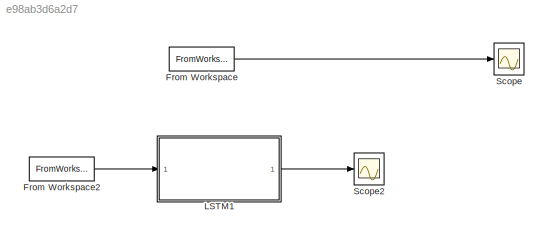
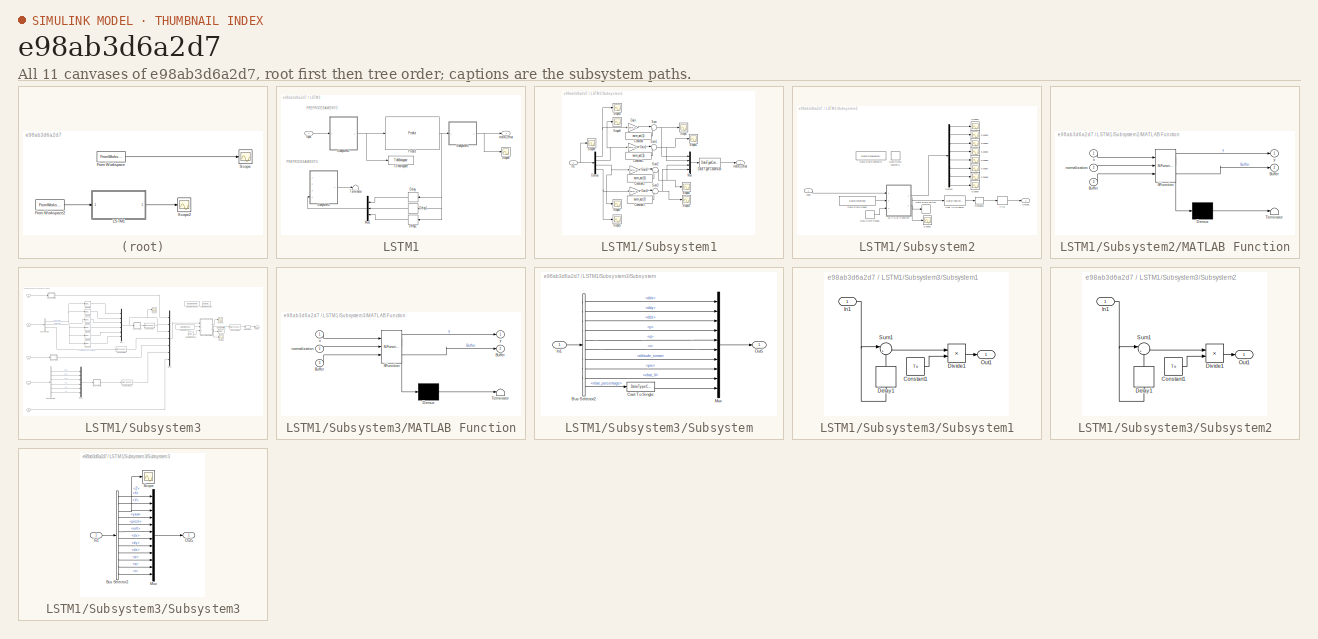
[diagram: thumbnail index - all 11 canvases of the model, root first then tree order]
MODEL slx_e98ab3d6a2d7
KIND model
CONFIG AbsTol = auto
CONFIG EnableMultiTasking = off
CONFIG FixedStep = auto
CONFIG MaxStep = auto
CONFIG MinStep = auto
CONFIG RelTol = 1e-3
CONFIG SampleTimeConstraint = Unconstrained
CONFIG SolverName = VariableStepAuto
CONFIG StartTime = 0.0
CONFIG StopTime = 10
BLOCK [FromWorkspace] From Workspace
  SampleTime = 5e-3
  VariableName = Test
BLOCK [FromWorkspace] From Workspace2
  SampleTime = 5e-3
  VariableName = Test
BLOCK [SubSystem] LSTM1
  Ports = [1, 1]
  RequestExecContextInheritance = off
  VariantControl = LSTM
BLOCK [Delay] LSTM1/Delay
  Commented = on
  DelayLength = 1
  InputPortMap = u0
  Ports = [1, 1]
BLOCK [Delay] LSTM1/Delay1
  Commented = on
  InputPortMap = u0
  Ports = [1, 1]
BLOCK [Delay] LSTM1/Delay2
  Commented = on
  DelayLength = 3
  InputPortMap = u0
  Ports = [1, 1]
BLOCK [Inport] LSTM1/Input
BLOCK [Mux] LSTM1/Mux1
  Commented = on
  DisplayOption = bar
  Inputs = 3
  Ports = [3, 1]
BLOCK [Reference] LSTM1/Predict  REF=deeplib/Predict
  Ports = [1, 1]
  SourceBlock = deeplib/Predict
  SourceProductBaseCode = NN
  SourceType = Predict
BLOCK [Scope] LSTM1/Scope8
  Floating = off
  NumInputPorts = 1
  Ports = [1]
  ScopeSpecificationString = Simulink.scopes.TimeScopeBlockCfg('CurrentConfiguration', extmgr.ConfigurationSet(extmgr.Configuration('Core','General UI',true),extmgr.Configuration('Core','Source UI',true),extmgr.Configuration('Sources','WiredSimulink',true,'DataLoggingVariableName','ScopeData1'),extmgr.Configuration('Visuals','Time Domain',true,'SerializedDisplays',{struct('MinYLimReal','-507.807','MaxYLimReal','485.07436','YL...<+1582ch>
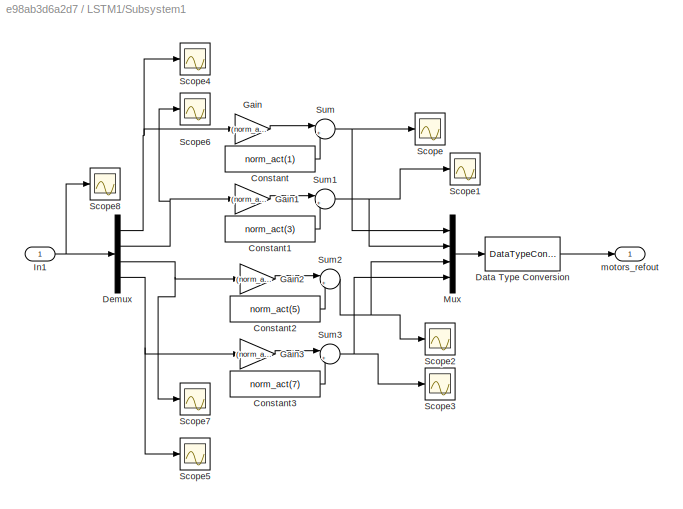
BLOCK [SubSystem] LSTM1/Subsystem1
  NameLocation = right
  Ports = [1, 1]
  RequestExecContextInheritance = off
BLOCK [Constant] LSTM1/Subsystem1/Constant
  Value = norm_act(1)
BLOCK [Constant] LSTM1/Subsystem1/Constant1
  Value = norm_act(3)
BLOCK [Constant] LSTM1/Subsystem1/Constant2
  Value = norm_act(5)
BLOCK [Constant] LSTM1/Subsystem1/Constant3
  Value = norm_act(7)
BLOCK [DataTypeConversion] LSTM1/Subsystem1/Data Type Conversion
  OutDataTypeStr = single
  RndMeth = Floor
  SaturateOnIntegerOverflow = off
BLOCK [Demux] LSTM1/Subsystem1/Demux
  Ports = [1, 4]
BLOCK [Gain] LSTM1/Subsystem1/Gain
  Gain = (norm_act(2)-norm_act(1))
BLOCK [Gain] LSTM1/Subsystem1/Gain1
  Gain = (norm_act(4)-norm_act(3))
BLOCK [Gain] LSTM1/Subsystem1/Gain2
  Gain = (norm_act(6)-norm_act(5))
BLOCK [Gain] LSTM1/Subsystem1/Gain3
  Gain = (norm_act(8)-norm_act(7))
BLOCK [Inport] LSTM1/Subsystem1/In1
BLOCK [Mux] LSTM1/Subsystem1/Mux
  DisplayOption = bar
  Ports = [4, 1]
BLOCK [Scope] LSTM1/Subsystem1/Scope
  Floating = off
  NumInputPorts = 1
  Ports = [1]
  ScopeSpecificationString = Simulink.scopes.TimeScopeBlockCfg('CurrentConfiguration', extmgr.ConfigurationSet(extmgr.Configuration('Core','General UI',true),extmgr.Configuration('Core','Source UI',true),extmgr.Configuration('Sources','WiredSimulink',true,'DataLoggingVariableName','ScopeData11'),extmgr.Configuration('Visuals','Time Domain',true,'SerializedDisplays',{struct('MinYLimReal','-14.63783','MaxYLimReal','513.83146','...<+1474ch>
BLOCK [Scope] LSTM1/Subsystem1/Scope1
  Floating = off
  NumInputPorts = 1
  Ports = [1]
  ScopeSpecificationString = Simulink.scopes.TimeScopeBlockCfg('CurrentConfiguration', extmgr.ConfigurationSet(extmgr.Configuration('Core','General UI',true),extmgr.Configuration('Core','Source UI',true),extmgr.Configuration('Sources','WiredSimulink',true,'DataLoggingVariableName','ScopeData12'),extmgr.Configuration('Visuals','Time Domain',true,'SerializedDisplays',{struct('MinYLimReal','-517.71413','MaxYLimReal','46.41268','...<+1404ch>
BLOCK [Scope] LSTM1/Subsystem1/Scope2
  Floating = off
  NumInputPorts = 1
  Ports = [1]
  ScopeSpecificationString = Simulink.scopes.TimeScopeBlockCfg('CurrentConfiguration', extmgr.ConfigurationSet(extmgr.Configuration('Core','General UI',true),extmgr.Configuration('Core','Source UI',true),extmgr.Configuration('Sources','WiredSimulink',true,'DataLoggingVariableName','ScopeData13'),extmgr.Configuration('Visuals','Time Domain',true,'SerializedDisplays',{struct('MinYLimReal','-36.8167','MaxYLimReal','431.3504','YL...<+1440ch>
BLOCK [Scope] LSTM1/Subsystem1/Scope3
  Floating = off
  NumInputPorts = 1
  Ports = [1]
  ScopeSpecificationString = Simulink.scopes.TimeScopeBlockCfg('CurrentConfiguration', extmgr.ConfigurationSet(extmgr.Configuration('Core','General UI',true),extmgr.Configuration('Core','Source UI',true),extmgr.Configuration('Sources','WiredSimulink',true,'DataLoggingVariableName','ScopeData14'),extmgr.Configuration('Visuals','Time Domain',true,'SerializedDisplays',{struct('MinYLimReal','-236.15714','MaxYLimReal','-229.71905'...<+1427ch>
BLOCK [Scope] LSTM1/Subsystem1/Scope4
  Floating = off
  NumInputPorts = 1
  Ports = [1]
  ScopeSpecificationString = Simulink.scopes.TimeScopeBlockCfg('CurrentConfiguration', extmgr.ConfigurationSet(extmgr.Configuration('Core','General UI',true),extmgr.Configuration('Core','Source UI',true),extmgr.Configuration('Sources','WiredSimulink',true,'DataLoggingVariableName','ScopeData15'),extmgr.Configuration('Visuals','Time Domain',true,'SerializedDisplays',{struct('MinYLimReal','-0.125','MaxYLimReal','1.125','YLabelR...<+1425ch>
BLOCK [Scope] LSTM1/Subsystem1/Scope5
  Floating = off
  NumInputPorts = 1
  Ports = [1]
  ScopeSpecificationString = Simulink.scopes.TimeScopeBlockCfg('CurrentConfiguration', extmgr.ConfigurationSet(extmgr.Configuration('Core','General UI',true),extmgr.Configuration('Core','Source UI',true),extmgr.Configuration('Sources','WiredSimulink',true,'DataLoggingVariableName','ScopeData16'),extmgr.Configuration('Visuals','Time Domain',true,'SerializedDisplays',{struct('MinYLimReal','0.25149','MaxYLimReal','1.08317','YLab...<+1365ch>
BLOCK [Scope] LSTM1/Subsystem1/Scope6
  Floating = off
  NumInputPorts = 1
  Ports = [1]
  ScopeSpecificationString = Simulink.scopes.TimeScopeBlockCfg('CurrentConfiguration', extmgr.ConfigurationSet(extmgr.Configuration('Core','General UI',true),extmgr.Configuration('Core','Source UI',true),extmgr.Configuration('Sources','WiredSimulink',true,'DataLoggingVariableName','ScopeData17'),extmgr.Configuration('Visuals','Time Domain',true,'SerializedDisplays',{struct('MinYLimReal','-0.11551','MaxYLimReal','1.12395','YLa...<+1414ch>
BLOCK [Scope] LSTM1/Subsystem1/Scope7
  Floating = off
  NumInputPorts = 1
  Ports = [1]
  ScopeSpecificationString = Simulink.scopes.TimeScopeBlockCfg('CurrentConfiguration', extmgr.ConfigurationSet(extmgr.Configuration('Core','General UI',true),extmgr.Configuration('Core','Source UI',true),extmgr.Configuration('Sources','WiredSimulink',true,'DataLoggingVariableName','ScopeData18'),extmgr.Configuration('Visuals','Time Domain',true,'SerializedDisplays',{struct('MinYLimReal','-0.10927','MaxYLimReal','0.98413','YLa...<+1393ch>
BLOCK [Scope] LSTM1/Subsystem1/Scope8
  Floating = off
  NumInputPorts = 1
  Ports = [1]
  ScopeSpecificationString = Simulink.scopes.TimeScopeBlockCfg('CurrentConfiguration', extmgr.ConfigurationSet(extmgr.Configuration('Core','General UI',true),extmgr.Configuration('Core','Source UI',true),extmgr.Configuration('Sources','WiredSimulink',true,'DataLoggingVariableName','ScopeData1'),extmgr.Configuration('Visuals','Time Domain',true,'SerializedDisplays',{struct('MinYLimReal','-0.12492','MaxYLimReal','1.12498','YLab...<+1460ch>
BLOCK [Sum] LSTM1/Subsystem1/Sum
  Inputs = |++
  Ports = [2, 1]
BLOCK [Sum] LSTM1/Subsystem1/Sum1
  Inputs = |++
  Ports = [2, 1]
BLOCK [Sum] LSTM1/Subsystem1/Sum2
  Inputs = |++
  Ports = [2, 1]
BLOCK [Sum] LSTM1/Subsystem1/Sum3
  Inputs = |++
  Ports = [2, 1]
BLOCK [Outport] LSTM1/Subsystem1/motors_refout
BLOCK [SubSystem] LSTM1/Subsystem2
  Ports = [1, 1]
  RequestExecContextInheritance = off
BLOCK [DataTypeConversion] LSTM1/Subsystem2/Cast To Single3
  OutDataTypeStr = single
  RndMeth = Floor
  SaturateOnIntegerOverflow = off
BLOCK [DataStoreMemory] LSTM1/Subsystem2/Data Store Memory1
  DataStoreName = Buffer
  InitialValue = repmat(x0,1,delays+1)
  ReadBeforeWriteMsg = warning
  ShowAdditionalParam = off
  WriteAfterReadMsg = warning
  WriteAfterWriteMsg = warning
BLOCK [DataStoreMemory] LSTM1/Subsystem2/Data Store Memory2
  DataStoreName = normalization_sts
  InitialValue = normalization_sts
  ReadBeforeWriteMsg = warning
  ShowAdditionalParam = off
  WriteAfterReadMsg = warning
  WriteAfterWriteMsg = warning
BLOCK [DataStoreRead] LSTM1/Subsystem2/Data Store Read1
  DataStoreName = normalization_sts
  IndexOptions = Index vector (dialog)
  Indices = 1
  OutputSizes = 1
  Ports = [0, 1]
BLOCK [DataStoreRead] LSTM1/Subsystem2/Data Store Read2
  DataStoreName = Buffer
  IndexOptions = Index vector (dialog)
  Indices = 1
  OutputSizes = 1
  Ports = [0, 1]
BLOCK [DataStoreWrite] LSTM1/Subsystem2/Data Store Write1
  DataStoreName = Buffer
  IndexOptions = Index vector (dialog)
  Indices = 1
  OutputSizes = 1
  Ports = [1]
BLOCK [Demux] LSTM1/Subsystem2/Demux
  Outputs = 8
  Ports = [1, 8]
BLOCK [DSPFlip] LSTM1/Subsystem2/Flip
  dim = Rows
BLOCK [Inport] LSTM1/Subsystem2/Input
BLOCK [SubSystem] LSTM1/Subsystem2/MATLAB Function
  ErrorFcn = Stateflow.Translate.translate
  PermitHierarchicalResolution = ExplicitOnly
  Ports = [3, 2]
  RequestExecContextInheritance = off
  SFBlockType = MATLAB Function
  TreatAsAtomicUnit = on
BLOCK [Demux] LSTM1/Subsystem2/MATLAB Function/ Demux 
  Outputs = 1
  Ports = [1, 1]
BLOCK [S-Function] LSTM1/Subsystem2/MATLAB Function/ SFunction 
  EnableBusSupport = on
  FunctionName = sf_sfun
  PortCounts = [3 3]
  Ports = [3, 3]
  SFcnIsStateOwnerBlock = off
  SFunctionDeploymentMode = off
  Tag = Stateflow S-Function 4
BLOCK [Terminator] LSTM1/Subsystem2/MATLAB Function/ Terminator 
BLOCK [Outport] LSTM1/Subsystem2/MATLAB Function/Buffer
  Port = 2
BLOCK [Inport] LSTM1/Subsystem2/MATLAB Function/Buffer 
  Port = 3
BLOCK [Inport] LSTM1/Subsystem2/MATLAB Function/normalization
  Port = 2
BLOCK [Inport] LSTM1/Subsystem2/MATLAB Function/u
BLOCK [Outport] LSTM1/Subsystem2/MATLAB Function/y
BLOCK [Outport] LSTM1/Subsystem2/Output
BLOCK [Reshape] LSTM1/Subsystem2/Reshape1
  OutputDimensionality = Customize
  OutputDimensions = [length(x0),delays+1]
  Ports = [1, 1]
BLOCK [Scope] LSTM1/Subsystem2/Scope1
  Floating = off
  NumInputPorts = 1
  Ports = [1]
  ScopeSpecificationString = Simulink.scopes.TimeScopeBlockCfg('CurrentConfiguration', extmgr.ConfigurationSet(extmgr.Configuration('Core','General UI',true),extmgr.Configuration('Core','Source UI',true),extmgr.Configuration('Sources','WiredSimulink',true,'DataLoggingVariableName','ScopeData2'),extmgr.Configuration('Visuals','Time Domain',true,'SerializedDisplays',{struct('MinYLimReal','0.34551','MaxYLimReal','0.88614','YLabe...<+5008ch>
BLOCK [Scope] LSTM1/Subsystem2/Scope2
  Floating = off
  NumInputPorts = 1
  Ports = [1]
  ScopeSpecificationString = Simulink.scopes.TimeScopeBlockCfg('CurrentConfiguration', extmgr.ConfigurationSet(extmgr.Configuration('Core','General UI',true),extmgr.Configuration('Core','Source UI',true),extmgr.Configuration('Sources','WiredSimulink',true,'DataLoggingVariableName','ScopeData1'),extmgr.Configuration('Visuals','Time Domain',true,'SerializedDisplays',{struct('MinYLimReal','-0.12366','MaxYLimReal','1.11296','YLab...<+1431ch>
BLOCK [Scope] LSTM1/Subsystem2/Scope3
  Floating = off
  NumInputPorts = 1
  Ports = [1]
  ScopeSpecificationString = Simulink.scopes.TimeScopeBlockCfg('CurrentConfiguration', extmgr.ConfigurationSet(extmgr.Configuration('Core','General UI',true),extmgr.Configuration('Core','Source UI',true),extmgr.Configuration('Sources','WiredSimulink',true,'DataLoggingVariableName','ScopeData3'),extmgr.Configuration('Visuals','Time Domain',true,'SerializedDisplays',{struct('MinYLimReal','0.41609','MaxYLimReal','0.59722','YLabe...<+1429ch>
BLOCK [Scope] LSTM1/Subsystem2/Scope4
  Floating = off
  NumInputPorts = 1
  Ports = [1]
  ScopeSpecificationString = Simulink.scopes.TimeScopeBlockCfg('CurrentConfiguration', extmgr.ConfigurationSet(extmgr.Configuration('Core','General UI',true),extmgr.Configuration('Core','Source UI',true),extmgr.Configuration('Sources','WiredSimulink',true,'DataLoggingVariableName','ScopeData4'),extmgr.Configuration('Visuals','Time Domain',true,'SerializedDisplays',{struct('MinYLimReal','-0.12683','MaxYLimReal','1.14147','YLab...<+1996ch>
BLOCK [Scope] LSTM1/Subsystem2/Scope5
  Floating = off
  NumInputPorts = 1
  Ports = [1]
  ScopeSpecificationString = Simulink.scopes.TimeScopeBlockCfg('CurrentConfiguration', extmgr.ConfigurationSet(extmgr.Configuration('Core','General UI',true),extmgr.Configuration('Core','Source UI',true),extmgr.Configuration('Sources','WiredSimulink',true,'DataLoggingVariableName','ScopeData5'),extmgr.Configuration('Visuals','Time Domain',true,'SerializedDisplays',{struct('MinYLimReal','-0.12683','MaxYLimReal','1.14147','YLab...<+1996ch>
BLOCK [Scope] LSTM1/Subsystem2/Scope6
  Floating = off
  NumInputPorts = 1
  Ports = [1]
  ScopeSpecificationString = Simulink.scopes.TimeScopeBlockCfg('CurrentConfiguration', extmgr.ConfigurationSet(extmgr.Configuration('Core','General UI',true),extmgr.Configuration('Core','Source UI',true),extmgr.Configuration('Sources','WiredSimulink',true,'DataLoggingVariableName','ScopeData6'),extmgr.Configuration('Visuals','Time Domain',true,'SerializedDisplays',{struct('MinYLimReal','-0.12683','MaxYLimReal','1.14147','YLab...<+1996ch>
BLOCK [Scope] LSTM1/Subsystem2/Scope7
  Floating = off
  NumInputPorts = 1
  Ports = [1]
  ScopeSpecificationString = Simulink.scopes.TimeScopeBlockCfg('CurrentConfiguration', extmgr.ConfigurationSet(extmgr.Configuration('Core','General UI',true),extmgr.Configuration('Core','Source UI',true),extmgr.Configuration('Sources','WiredSimulink',true,'DataLoggingVariableName','ScopeData7'),extmgr.Configuration('Visuals','Time Domain',true,'SerializedDisplays',{struct('MinYLimReal','0.03988','MaxYLimReal','1.10007','YLabe...<+1429ch>
BLOCK [Scope] LSTM1/Subsystem2/Scope8
  Floating = off
  NumInputPorts = 1
  Ports = [1]
  ScopeSpecificationString = Simulink.scopes.TimeScopeBlockCfg('CurrentConfiguration', extmgr.ConfigurationSet(extmgr.Configuration('Core','General UI',true),extmgr.Configuration('Core','Source UI',true),extmgr.Configuration('Sources','WiredSimulink',true,'DataLoggingVariableName','ScopeData8'),extmgr.Configuration('Visuals','Time Domain',true,'SerializedDisplays',{struct('MinYLimReal','-0.125','MaxYLimReal','1.125','YLabelRe...<+1438ch>
BLOCK [Scope] LSTM1/Subsystem2/Scope9
  Floating = off
  NumInputPorts = 1
  Ports = [1]
  ScopeSpecificationString = Simulink.scopes.TimeScopeBlockCfg('CurrentConfiguration', extmgr.ConfigurationSet(extmgr.Configuration('Core','General UI',true),extmgr.Configuration('Core','Source UI',true),extmgr.Configuration('Sources','WiredSimulink',true,'DataLoggingVariableName','ScopeData9'),extmgr.Configuration('Visuals','Time Domain',true,'SerializedDisplays',{struct('MinYLimReal','-0.125','MaxYLimReal','1.125','YLabelRe...<+1417ch>
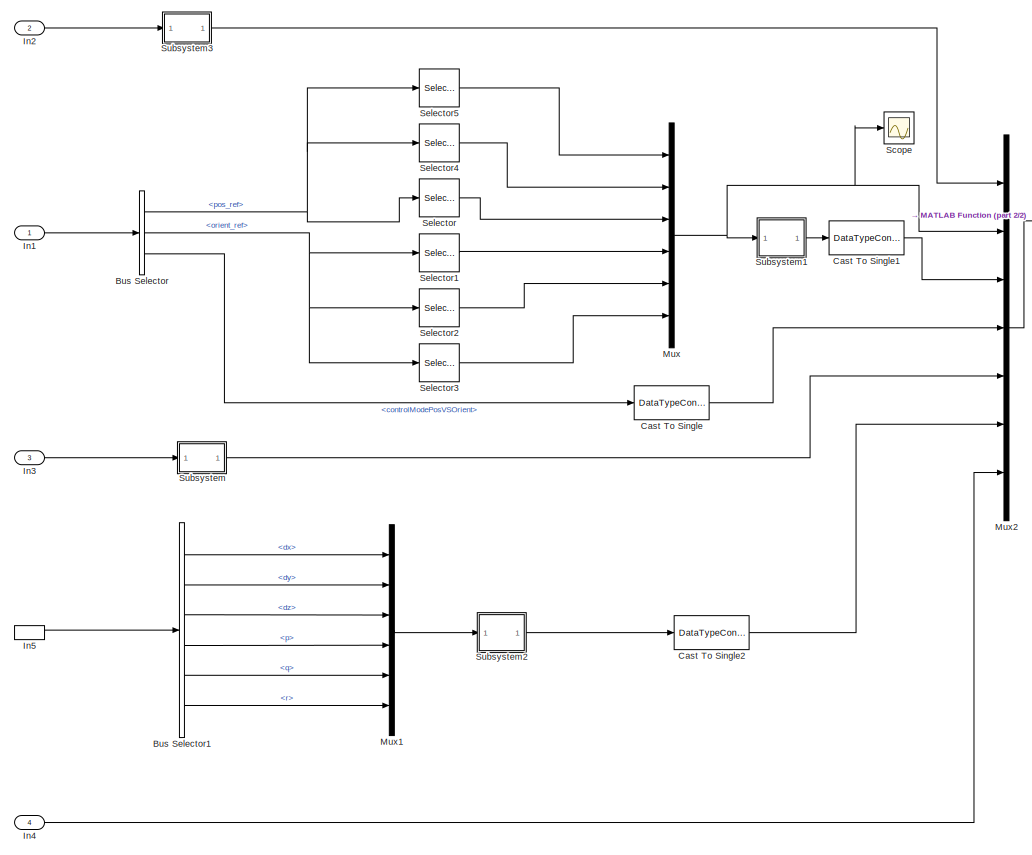
[diagram: LSTM1/Subsystem3 - part 1/2, left side, full height]
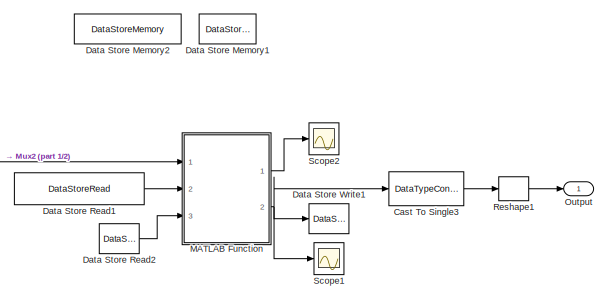
[diagram: LSTM1/Subsystem3 - part 2/2, top right region]
BLOCK [SubSystem] LSTM1/Subsystem3
  Commented = on
  Ports = [4, 1]
  RequestExecContextInheritance = off
BLOCK [BusSelector] LSTM1/Subsystem3/Bus Selector
  OutputSignals = pos_ref,orient_ref,controlModePosVSOrient
  Ports = [1, 3]
BLOCK [BusSelector] LSTM1/Subsystem3/Bus Selector1
  OutputSignals = dx,dy,dz,p,q,r
  Ports = [1, 6]
BLOCK [DataTypeConversion] LSTM1/Subsystem3/Cast To Single
  OutDataTypeStr = single
  RndMeth = Floor
  SaturateOnIntegerOverflow = off
BLOCK [DataTypeConversion] LSTM1/Subsystem3/Cast To Single1
  OutDataTypeStr = single
  RndMeth = Floor
  SaturateOnIntegerOverflow = off
BLOCK [DataTypeConversion] LSTM1/Subsystem3/Cast To Single2
  OutDataTypeStr = single
  RndMeth = Floor
  SaturateOnIntegerOverflow = off
BLOCK [DataTypeConversion] LSTM1/Subsystem3/Cast To Single3
  OutDataTypeStr = single
  RndMeth = Floor
  SaturateOnIntegerOverflow = off
BLOCK [DataStoreMemory] LSTM1/Subsystem3/Data Store Memory1
  DataStoreName = Buffer_f
  InitialValue = repmat(x0_f,1,delays+1)
  ReadBeforeWriteMsg = warning
  ShowAdditionalParam = off
  WriteAfterReadMsg = warning
  WriteAfterWriteMsg = warning
BLOCK [DataStoreMemory] LSTM1/Subsystem3/Data Store Memory2
  DataStoreName = normalization_sts
  InitialValue = normalization_sts
  ReadBeforeWriteMsg = warning
  ShowAdditionalParam = off
  WriteAfterReadMsg = warning
  WriteAfterWriteMsg = warning
BLOCK [DataStoreRead] LSTM1/Subsystem3/Data Store Read1
  DataStoreName = normalization_sts
  IndexOptions = Index vector (dialog)
  Indices = 1
  OutputSizes = 1
  Ports = [0, 1]
BLOCK [DataStoreRead] LSTM1/Subsystem3/Data Store Read2
  DataStoreName = Buffer_f
  IndexOptions = Index vector (dialog)
  Indices = 1
  OutputSizes = 1
  Ports = [0, 1]
BLOCK [DataStoreWrite] LSTM1/Subsystem3/Data Store Write1
  DataStoreName = Buffer_f
  IndexOptions = Index vector (dialog)
  Indices = 1
  OutputSizes = 1
  Ports = [1]
BLOCK [Inport] LSTM1/Subsystem3/In1
BLOCK [Inport] LSTM1/Subsystem3/In2
  Port = 2
BLOCK [Inport] LSTM1/Subsystem3/In3
  Port = 3
BLOCK [Inport] LSTM1/Subsystem3/In4
  Port = 4
BLOCK [InportShadow] LSTM1/Subsystem3/In5
  Port = 2
BLOCK [SubSystem] LSTM1/Subsystem3/MATLAB Function
  ErrorFcn = Stateflow.Translate.translate
  PermitHierarchicalResolution = ExplicitOnly
  Ports = [3, 2]
  RequestExecContextInheritance = off
  SFBlockType = MATLAB Function
  TreatAsAtomicUnit = on
BLOCK [Demux] LSTM1/Subsystem3/MATLAB Function/ Demux 
  Outputs = 1
  Ports = [1, 1]
BLOCK [S-Function] LSTM1/Subsystem3/MATLAB Function/ SFunction 
  EnableBusSupport = on
  FunctionName = sf_sfun
  PortCounts = [3 3]
  Ports = [3, 3]
  SFcnIsStateOwnerBlock = off
  SFunctionDeploymentMode = off
  Tag = Stateflow S-Function 5
BLOCK [Terminator] LSTM1/Subsystem3/MATLAB Function/ Terminator 
BLOCK [Outport] LSTM1/Subsystem3/MATLAB Function/Buffer
  Port = 2
BLOCK [Inport] LSTM1/Subsystem3/MATLAB Function/Buffer 
  Port = 3
BLOCK [Inport] LSTM1/Subsystem3/MATLAB Function/normalization
  Port = 2
BLOCK [Inport] LSTM1/Subsystem3/MATLAB Function/u
BLOCK [Outport] LSTM1/Subsystem3/MATLAB Function/y
BLOCK [Mux] LSTM1/Subsystem3/Mux
  DisplayOption = bar
  Inputs = 6
  Ports = [6, 1]
BLOCK [Mux] LSTM1/Subsystem3/Mux1
  DisplayOption = bar
  Inputs = 6
  Ports = [6, 1]
BLOCK [Mux] LSTM1/Subsystem3/Mux2
  DisplayOption = signals
  Inputs = 7
  Ports = [7, 1]
BLOCK [Outport] LSTM1/Subsystem3/Output
BLOCK [Reshape] LSTM1/Subsystem3/Reshape1
  OutputDimensionality = Customize
  OutputDimensions = [length(x0_f),delays+1]
  Ports = [1, 1]
BLOCK [Scope] LSTM1/Subsystem3/Scope
  Floating = off
  NumInputPorts = 1
  Ports = [1]
  ScopeSpecificationString = Simulink.scopes.TimeScopeBlockCfg('CurrentConfiguration', extmgr.ConfigurationSet(extmgr.Configuration('Core','General UI',true),extmgr.Configuration('Core','Source UI',true),extmgr.Configuration('Sources','WiredSimulink',true,'DataLoggingVariableName','ScopeData1'),extmgr.Configuration('Visuals','Time Domain',true,'SerializedDisplays',{struct('MinYLimReal','-53.25781','MaxYLimReal','100.66612','Y...<+1505ch>
BLOCK [Scope] LSTM1/Subsystem3/Scope1
  Floating = off
  NumInputPorts = 1
  Ports = [1]
  ScopeSpecificationString = Simulink.scopes.TimeScopeBlockCfg('CurrentConfiguration', extmgr.ConfigurationSet(extmgr.Configuration('Core','General UI',true),extmgr.Configuration('Core','Source UI',true),extmgr.Configuration('Sources','WiredSimulink',true,'DataLoggingVariableName','ScopeData2'),extmgr.Configuration('Visuals','Time Domain',true,'SerializedDisplays',{struct('MinYLimReal','0.34551','MaxYLimReal','0.88614','YLabe...<+5008ch>
BLOCK [Scope] LSTM1/Subsystem3/Scope2
  Floating = off
  NumInputPorts = 1
  Ports = [1]
  ScopeSpecificationString = Simulink.scopes.TimeScopeBlockCfg('CurrentConfiguration', extmgr.ConfigurationSet(extmgr.Configuration('Core','General UI',true),extmgr.Configuration('Core','Source UI',true),extmgr.Configuration('Sources','WiredSimulink',true,'DataLoggingVariableName','ScopeData1'),extmgr.Configuration('Visuals','Time Domain',true,'SerializedDisplays',{struct('MinYLimReal','-0.12683','MaxYLimReal','1.14147','YLab...<+1996ch>
BLOCK [Selector] LSTM1/Subsystem3/Selector
  IndexOptions = Index vector (dialog)
  Indices = [3]
  InputPortWidth = 3
  OutputSizes = 1
  Ports = [1, 1]
BLOCK [Selector] LSTM1/Subsystem3/Selector1
  IndexOptions = Index vector (dialog)
  Indices = [1]
  InputPortWidth = 3
  OutputSizes = 1
  Ports = [1, 1]
BLOCK [Selector] LSTM1/Subsystem3/Selector2
  IndexOptions = Index vector (dialog)
  Indices = [3]
  InputPortWidth = 3
  OutputSizes = 1
  Ports = [1, 1]
BLOCK [Selector] LSTM1/Subsystem3/Selector3
  IndexOptions = Index vector (dialog)
  Indices = [2]
  InputPortWidth = 3
  OutputSizes = 1
  Ports = [1, 1]
BLOCK [Selector] LSTM1/Subsystem3/Selector4
  IndexOptions = Index vector (dialog)
  Indices = [2]
  InputPortWidth = 3
  OutputSizes = 1
  Ports = [1, 1]
BLOCK [Selector] LSTM1/Subsystem3/Selector5
  IndexOptions = Index vector (dialog)
  Indices = [1]
  InputPortWidth = 3
  OutputSizes = 1
  Ports = [1, 1]
BLOCK [SubSystem] LSTM1/Subsystem3/Subsystem
  Ports = [1, 1]
  RequestExecContextInheritance = off
BLOCK [BusSelector] LSTM1/Subsystem3/Subsystem/Bus Selector2
  OutputSignals = ddx,ddy,ddz,p,q,r,altitude_sonar,prs,vbat_V,vbat_percentage
  Ports = [1, 10]
BLOCK [DataTypeConversion] LSTM1/Subsystem3/Subsystem/Cast To Single
  OutDataTypeStr = single
  RndMeth = Floor
  SaturateOnIntegerOverflow = off
BLOCK [Inport] LSTM1/Subsystem3/Subsystem/In1
BLOCK [Mux] LSTM1/Subsystem3/Subsystem/Mux
  DisplayOption = bar
  Inputs = 10
  Ports = [10, 1]
BLOCK [Outport] LSTM1/Subsystem3/Subsystem/Out5
BLOCK [SubSystem] LSTM1/Subsystem3/Subsystem1
  Ports = [1, 1]
  RequestExecContextInheritance = off
BLOCK [Constant] LSTM1/Subsystem3/Subsystem1/Constant1
  Value = Ts
BLOCK [Delay] LSTM1/Subsystem3/Subsystem1/Delay1
  DelayLength = 1
  InitialCondition = 0
  InputPortMap = u0
  NameLocation = right
  Ports = [1, 1]
BLOCK [Product] LSTM1/Subsystem3/Subsystem1/Divide1
  Inputs = */
  Ports = [2, 1]
BLOCK [Inport] LSTM1/Subsystem3/Subsystem1/In1
BLOCK [Outport] LSTM1/Subsystem3/Subsystem1/Out1
BLOCK [Sum] LSTM1/Subsystem3/Subsystem1/Sum1
  Inputs = |+-
  Ports = [2, 1]
BLOCK [SubSystem] LSTM1/Subsystem3/Subsystem2
  Ports = [1, 1]
  RequestExecContextInheritance = off
BLOCK [Constant] LSTM1/Subsystem3/Subsystem2/Constant1
  Value = Ts
BLOCK [Delay] LSTM1/Subsystem3/Subsystem2/Delay1
  DelayLength = 1
  InitialCondition = 0
  InputPortMap = u0
  NameLocation = right
  Ports = [1, 1]
BLOCK [Product] LSTM1/Subsystem3/Subsystem2/Divide1
  Inputs = */
  Ports = [2, 1]
BLOCK [Inport] LSTM1/Subsystem3/Subsystem2/In1
BLOCK [Outport] LSTM1/Subsystem3/Subsystem2/Out1
BLOCK [Sum] LSTM1/Subsystem3/Subsystem2/Sum1
  Inputs = |+-
  Ports = [2, 1]
BLOCK [SubSystem] LSTM1/Subsystem3/Subsystem3
  Ports = [1, 1]
  RequestExecContextInheritance = off
BLOCK [BusSelector] LSTM1/Subsystem3/Subsystem3/Bus Selector2
  OutputSignals = X,Y,Z,yaw,pitch,roll,dx,dy,dz,p,q,r
  Ports = [1, 12]
BLOCK [Inport] LSTM1/Subsystem3/Subsystem3/In1
BLOCK [Mux] LSTM1/Subsystem3/Subsystem3/Mux
  DisplayOption = bar
  Inputs = 12
  Ports = [12, 1]
BLOCK [Outport] LSTM1/Subsystem3/Subsystem3/Out5
BLOCK [Scope] LSTM1/Subsystem3/Subsystem3/Scope
  Floating = off
  NumInputPorts = 1
  Ports = [1]
  ScopeSpecificationString = Simulink.scopes.TimeScopeBlockCfg('CurrentConfiguration', extmgr.ConfigurationSet(extmgr.Configuration('Core','General UI',true),extmgr.Configuration('Core','Source UI',true),extmgr.Configuration('Sources','WiredSimulink',true,'DataLoggingVariableName','ScopeData3'),extmgr.Configuration('Visuals','Time Domain',true,'SerializedDisplays',{struct('MinYLimReal','-3.72815','MaxYLimReal','0.36634','YLab...<+1362ch>
BLOCK [Terminator] LSTM1/Terminator
  Commented = on
BLOCK [ToWorkspace] LSTM1/To Workspace
  FixptAsFi = on
  MaxDataPoints = inf
  Ports = [1]
  SampleTime = 5e-3
  Save2DSignal = 2-D array (concatenate along first dimension)
  SaveFormat = Structure With Time
  VariableName = Input_test
BLOCK [Outport] LSTM1/motors_refout
BLOCK [Scope] Scope
  Floating = off
  NumInputPorts = 1
  Ports = [1]
  ScopeSpecificationString = Simulink.scopes.TimeScopeBlockCfg('CurrentConfiguration', extmgr.ConfigurationSet(extmgr.Configuration('Core','General UI',true),extmgr.Configuration('Core','Source UI',true),extmgr.Configuration('Sources','WiredSimulink',true),extmgr.Configuration('Visuals','Time Domain',true,'SerializedDisplays',{struct('MinYLimReal','-12973.7998','MaxYLimReal','113964.1982','YLabelReal','','MinYLimMag','   0.00...<+2207ch>
BLOCK [Scope] Scope2
  Floating = off
  NumInputPorts = 1
  Ports = [1]
  ScopeSpecificationString = Simulink.scopes.TimeScopeBlockCfg('CurrentConfiguration', extmgr.ConfigurationSet(extmgr.Configuration('Core','General UI',true),extmgr.Configuration('Core','Source UI',true),extmgr.Configuration('Sources','WiredSimulink',true,'DataLoggingVariableName','ScopeData1'),extmgr.Configuration('Visuals','Time Domain',true,'SerializedDisplays',{struct('MinYLimReal','-448.53759','MaxYLimReal','443.64682','...<+1461ch>
ANNOTATION LSTM1: PREPROCESAMIENTO
LINE From Workspace2:1 -> LSTM1:1
LINE From Workspace:1 -> Scope:1
LINE LSTM1/Delay1:1 -> LSTM1/Mux1:2
LINE LSTM1/Delay2:1 -> LSTM1/Mux1:3
LINE LSTM1/Delay:1 -> LSTM1/Mux1:1
LINE LSTM1/Input:1 -> LSTM1/Subsystem2:1
LINE LSTM1/Mux1:1 -> LSTM1/Subsystem3:4
NET LSTM1/Predict:1 -> LSTM1/Delay1:1, LSTM1/Delay2:1, LSTM1/Delay:1, LSTM1/Subsystem1:1
LINE LSTM1/Subsystem1/Constant1:1 -> LSTM1/Subsystem1/Sum1:2
LINE LSTM1/Subsystem1/Constant2:1 -> LSTM1/Subsystem1/Sum2:2
LINE LSTM1/Subsystem1/Constant3:1 -> LSTM1/Subsystem1/Sum3:2
LINE LSTM1/Subsystem1/Constant:1 -> LSTM1/Subsystem1/Sum:2
LINE LSTM1/Subsystem1/Data Type Conversion:1 -> LSTM1/Subsystem1/motors_refout:1
NET LSTM1/Subsystem1/Demux:1 -> LSTM1/Subsystem1/Gain:1, LSTM1/Subsystem1/Scope4:1
NET LSTM1/Subsystem1/Demux:2 -> LSTM1/Subsystem1/Gain1:1, LSTM1/Subsystem1/Scope6:1
NET LSTM1/Subsystem1/Demux:3 -> LSTM1/Subsystem1/Gain2:1, LSTM1/Subsystem1/Scope7:1
NET LSTM1/Subsystem1/Demux:4 -> LSTM1/Subsystem1/Gain3:1, LSTM1/Subsystem1/Scope5:1
LINE LSTM1/Subsystem1/Gain1:1 -> LSTM1/Subsystem1/Sum1:1
LINE LSTM1/Subsystem1/Gain2:1 -> LSTM1/Subsystem1/Sum2:1
LINE LSTM1/Subsystem1/Gain3:1 -> LSTM1/Subsystem1/Sum3:1
LINE LSTM1/Subsystem1/Gain:1 -> LSTM1/Subsystem1/Sum:1
NET LSTM1/Subsystem1/In1:1 -> LSTM1/Subsystem1/Demux:1, LSTM1/Subsystem1/Scope8:1
LINE LSTM1/Subsystem1/Mux:1 -> LSTM1/Subsystem1/Data Type Conversion:1
NET LSTM1/Subsystem1/Sum1:1 -> LSTM1/Subsystem1/Mux:2, LSTM1/Subsystem1/Scope1:1
NET LSTM1/Subsystem1/Sum2:1 -> LSTM1/Subsystem1/Mux:3, LSTM1/Subsystem1/Scope2:1
NET LSTM1/Subsystem1/Sum3:1 -> LSTM1/Subsystem1/Mux:4, LSTM1/Subsystem1/Scope3:1
NET LSTM1/Subsystem1/Sum:1 -> LSTM1/Subsystem1/Mux:1, LSTM1/Subsystem1/Scope:1
NET LSTM1/Subsystem1:1 -> LSTM1/Scope8:1, LSTM1/motors_refout:1
LINE LSTM1/Subsystem2/Cast To Single3:1 -> LSTM1/Subsystem2/Reshape1:1
LINE LSTM1/Subsystem2/Data Store Read1:1 -> LSTM1/Subsystem2/MATLAB Function:2
LINE LSTM1/Subsystem2/Data Store Read2:1 -> LSTM1/Subsystem2/MATLAB Function:3
LINE LSTM1/Subsystem2/Demux:1 -> LSTM1/Subsystem2/Scope2:1
LINE LSTM1/Subsystem2/Demux:2 -> LSTM1/Subsystem2/Scope3:1
LINE LSTM1/Subsystem2/Demux:3 -> LSTM1/Subsystem2/Scope4:1
LINE LSTM1/Subsystem2/Demux:4 -> LSTM1/Subsystem2/Scope5:1
LINE LSTM1/Subsystem2/Demux:5 -> LSTM1/Subsystem2/Scope6:1
LINE LSTM1/Subsystem2/Demux:6 -> LSTM1/Subsystem2/Scope7:1
LINE LSTM1/Subsystem2/Demux:7 -> LSTM1/Subsystem2/Scope8:1
LINE LSTM1/Subsystem2/Demux:8 -> LSTM1/Subsystem2/Scope9:1
LINE LSTM1/Subsystem2/Flip:1 -> LSTM1/Subsystem2/Output:1
LINE LSTM1/Subsystem2/Input:1 -> LSTM1/Subsystem2/MATLAB Function:1
LINE LSTM1/Subsystem2/MATLAB Function:1 -> LSTM1/Subsystem2/Demux:1
NET LSTM1/Subsystem2/MATLAB Function:2 -> LSTM1/Subsystem2/Cast To Single3:1, LSTM1/Subsystem2/Data Store Write1:1, LSTM1/Subsystem2/Scope1:1
LINE LSTM1/Subsystem2/Reshape1:1 -> LSTM1/Subsystem2/Flip:1
NET LSTM1/Subsystem2:1 -> LSTM1/Predict:1, LSTM1/To Workspace:1
LINE LSTM1/Subsystem3/Bus Selector1:1 -> LSTM1/Subsystem3/Mux1:1
LINE LSTM1/Subsystem3/Bus Selector1:2 -> LSTM1/Subsystem3/Mux1:2
LINE LSTM1/Subsystem3/Bus Selector1:3 -> LSTM1/Subsystem3/Mux1:3
LINE LSTM1/Subsystem3/Bus Selector1:4 -> LSTM1/Subsystem3/Mux1:4
LINE LSTM1/Subsystem3/Bus Selector1:5 -> LSTM1/Subsystem3/Mux1:5
LINE LSTM1/Subsystem3/Bus Selector1:6 -> LSTM1/Subsystem3/Mux1:6
NET LSTM1/Subsystem3/Bus Selector:1 -> LSTM1/Subsystem3/Selector4:1, LSTM1/Subsystem3/Selector5:1, LSTM1/Subsystem3/Selector:1
NET LSTM1/Subsystem3/Bus Selector:2 -> LSTM1/Subsystem3/Selector1:1, LSTM1/Subsystem3/Selector2:1, LSTM1/Subsystem3/Selector3:1
LINE LSTM1/Subsystem3/Bus Selector:3 -> LSTM1/Subsystem3/Cast To Single:1
LINE LSTM1/Subsystem3/Cast To Single1:1 -> LSTM1/Subsystem3/Mux2:3
LINE LSTM1/Subsystem3/Cast To Single2:1 -> LSTM1/Subsystem3/Mux2:6
LINE LSTM1/Subsystem3/Cast To Single3:1 -> LSTM1/Subsystem3/Reshape1:1
LINE LSTM1/Subsystem3/Cast To Single:1 -> LSTM1/Subsystem3/Mux2:4
LINE LSTM1/Subsystem3/Data Store Read1:1 -> LSTM1/Subsystem3/MATLAB Function:2
LINE LSTM1/Subsystem3/Data Store Read2:1 -> LSTM1/Subsystem3/MATLAB Function:3
LINE LSTM1/Subsystem3/In1:1 -> LSTM1/Subsystem3/Bus Selector:1
LINE LSTM1/Subsystem3/In2:1 -> LSTM1/Subsystem3/Subsystem3:1
LINE LSTM1/Subsystem3/In3:1 -> LSTM1/Subsystem3/Subsystem:1
LINE LSTM1/Subsystem3/In4:1 -> LSTM1/Subsystem3/Mux2:7
LINE LSTM1/Subsystem3/In5:1 -> LSTM1/Subsystem3/Bus Selector1:1
LINE LSTM1/Subsystem3/MATLAB Function:1 -> LSTM1/Subsystem3/Scope2:1
NET LSTM1/Subsystem3/MATLAB Function:2 -> LSTM1/Subsystem3/Cast To Single3:1, LSTM1/Subsystem3/Data Store Write1:1, LSTM1/Subsystem3/Scope1:1
LINE LSTM1/Subsystem3/Mux1:1 -> LSTM1/Subsystem3/Subsystem2:1
LINE LSTM1/Subsystem3/Mux2:1 -> LSTM1/Subsystem3/MATLAB Function:1
NET LSTM1/Subsystem3/Mux:1 -> LSTM1/Subsystem3/Mux2:2, LSTM1/Subsystem3/Scope:1, LSTM1/Subsystem3/Subsystem1:1
LINE LSTM1/Subsystem3/Reshape1:1 -> LSTM1/Subsystem3/Output:1
LINE LSTM1/Subsystem3/Selector1:1 -> LSTM1/Subsystem3/Mux:4
LINE LSTM1/Subsystem3/Selector2:1 -> LSTM1/Subsystem3/Mux:5
LINE LSTM1/Subsystem3/Selector3:1 -> LSTM1/Subsystem3/Mux:6
LINE LSTM1/Subsystem3/Selector4:1 -> LSTM1/Subsystem3/Mux:2
LINE LSTM1/Subsystem3/Selector5:1 -> LSTM1/Subsystem3/Mux:1
LINE LSTM1/Subsystem3/Selector:1 -> LSTM1/Subsystem3/Mux:3
LINE LSTM1/Subsystem3/Subsystem/Bus Selector2:1 -> LSTM1/Subsystem3/Subsystem/Mux:1
LINE LSTM1/Subsystem3/Subsystem/Bus Selector2:10 -> LSTM1/Subsystem3/Subsystem/Cast To Single:1
LINE LSTM1/Subsystem3/Subsystem/Bus Selector2:2 -> LSTM1/Subsystem3/Subsystem/Mux:2
LINE LSTM1/Subsystem3/Subsystem/Bus Selector2:3 -> LSTM1/Subsystem3/Subsystem/Mux:3
LINE LSTM1/Subsystem3/Subsystem/Bus Selector2:4 -> LSTM1/Subsystem3/Subsystem/Mux:4
LINE LSTM1/Subsystem3/Subsystem/Bus Selector2:5 -> LSTM1/Subsystem3/Subsystem/Mux:5
LINE LSTM1/Subsystem3/Subsystem/Bus Selector2:6 -> LSTM1/Subsystem3/Subsystem/Mux:6
LINE LSTM1/Subsystem3/Subsystem/Bus Selector2:7 -> LSTM1/Subsystem3/Subsystem/Mux:7
LINE LSTM1/Subsystem3/Subsystem/Bus Selector2:8 -> LSTM1/Subsystem3/Subsystem/Mux:8
LINE LSTM1/Subsystem3/Subsystem/Bus Selector2:9 -> LSTM1/Subsystem3/Subsystem/Mux:9
LINE LSTM1/Subsystem3/Subsystem/Cast To Single:1 -> LSTM1/Subsystem3/Subsystem/Mux:10
LINE LSTM1/Subsystem3/Subsystem/In1:1 -> LSTM1/Subsystem3/Subsystem/Bus Selector2:1
LINE LSTM1/Subsystem3/Subsystem/Mux:1 -> LSTM1/Subsystem3/Subsystem/Out5:1
LINE LSTM1/Subsystem3/Subsystem1/Constant1:1 -> LSTM1/Subsystem3/Subsystem1/Divide1:2
LINE LSTM1/Subsystem3/Subsystem1/Delay1:1 -> LSTM1/Subsystem3/Subsystem1/Sum1:2
LINE LSTM1/Subsystem3/Subsystem1/Divide1:1 -> LSTM1/Subsystem3/Subsystem1/Out1:1
NET LSTM1/Subsystem3/Subsystem1/In1:1 -> LSTM1/Subsystem3/Subsystem1/Delay1:1, LSTM1/Subsystem3/Subsystem1/Sum1:1
LINE LSTM1/Subsystem3/Subsystem1/Sum1:1 -> LSTM1/Subsystem3/Subsystem1/Divide1:1
LINE LSTM1/Subsystem3/Subsystem1:1 -> LSTM1/Subsystem3/Cast To Single1:1
LINE LSTM1/Subsystem3/Subsystem2/Constant1:1 -> LSTM1/Subsystem3/Subsystem2/Divide1:2
LINE LSTM1/Subsystem3/Subsystem2/Delay1:1 -> LSTM1/Subsystem3/Subsystem2/Sum1:2
LINE LSTM1/Subsystem3/Subsystem2/Divide1:1 -> LSTM1/Subsystem3/Subsystem2/Out1:1
NET LSTM1/Subsystem3/Subsystem2/In1:1 -> LSTM1/Subsystem3/Subsystem2/Delay1:1, LSTM1/Subsystem3/Subsystem2/Sum1:1
LINE LSTM1/Subsystem3/Subsystem2/Sum1:1 -> LSTM1/Subsystem3/Subsystem2/Divide1:1
LINE LSTM1/Subsystem3/Subsystem2:1 -> LSTM1/Subsystem3/Cast To Single2:1
LINE LSTM1/Subsystem3/Subsystem3/Bus Selector2:1 -> LSTM1/Subsystem3/Subsystem3/Mux:1
LINE LSTM1/Subsystem3/Subsystem3/Bus Selector2:10 -> LSTM1/Subsystem3/Subsystem3/Mux:10
LINE LSTM1/Subsystem3/Subsystem3/Bus Selector2:11 -> LSTM1/Subsystem3/Subsystem3/Mux:11
LINE LSTM1/Subsystem3/Subsystem3/Bus Selector2:12 -> LSTM1/Subsystem3/Subsystem3/Mux:12
LINE LSTM1/Subsystem3/Subsystem3/Bus Selector2:2 -> LSTM1/Subsystem3/Subsystem3/Mux:2
NET LSTM1/Subsystem3/Subsystem3/Bus Selector2:3 -> LSTM1/Subsystem3/Subsystem3/Mux:3, LSTM1/Subsystem3/Subsystem3/Scope:1
LINE LSTM1/Subsystem3/Subsystem3/Bus Selector2:4 -> LSTM1/Subsystem3/Subsystem3/Mux:4
LINE LSTM1/Subsystem3/Subsystem3/Bus Selector2:5 -> LSTM1/Subsystem3/Subsystem3/Mux:5
LINE LSTM1/Subsystem3/Subsystem3/Bus Selector2:6 -> LSTM1/Subsystem3/Subsystem3/Mux:6
LINE LSTM1/Subsystem3/Subsystem3/Bus Selector2:7 -> LSTM1/Subsystem3/Subsystem3/Mux:7
LINE LSTM1/Subsystem3/Subsystem3/Bus Selector2:8 -> LSTM1/Subsystem3/Subsystem3/Mux:8
LINE LSTM1/Subsystem3/Subsystem3/Bus Selector2:9 -> LSTM1/Subsystem3/Subsystem3/Mux:9
LINE LSTM1/Subsystem3/Subsystem3/In1:1 -> LSTM1/Subsystem3/Subsystem3/Bus Selector2:1
LINE LSTM1/Subsystem3/Subsystem3/Mux:1 -> LSTM1/Subsystem3/Subsystem3/Out5:1
LINE LSTM1/Subsystem3/Subsystem3:1 -> LSTM1/Subsystem3/Mux2:1
LINE LSTM1/Subsystem3/Subsystem:1 -> LSTM1/Subsystem3/Mux2:5
LINE LSTM1/Subsystem3:1 -> LSTM1/Terminator:1
LINE LSTM1:1 -> Scope2:1
note: NET lines group one-source signal fan-out (src -> all destinations, sorted); 1:1 wires keep LINE
CHART LSTM1/Subsystem2/MATLAB Function states=1 transitions=1
  STATE_LABEL 'eML_blk_kernel()'
  STATE_LABEL 'SCRIPT:\nfunction [y,Buffer] = fcn(u, normalization, Buffer)\n\ny=zeros(1,length(normalization(:,1)));\n\nfor i=1:length(normalization(:,1))\n    %disp(normalization(:,3))\n    if normalization(i,2)==normalization(i,1)\n        y(1,i)=u(normalization(i,3));\n    else\n        y(1,i)=((u(normalization(i,3))-normalization(i,2))/(normalization(i,1)-normalization(i,2)));   \n    end\n    if y(1,i)>1 | y(1,i)<0\n  ...<+259ch>'
CHART LSTM1/Subsystem3/MATLAB Function states=1 transitions=1
  STATE_LABEL 'eML_blk_kernel()'
  STATE_LABEL 'SCRIPT:\nfunction [y,Buffer] = fcn(u, normalization, Buffer)\n\ny=zeros(1,length(normalization(:,1)));\n\nfor i=1:length(normalization(:,1))\n    if normalization(i,2)==normalization(i,1)\n        y(1,i)=u(normalization(i,3))\n    else\n        y(1,i)=((u(normalization(i,3))-normalization(i,2))/(normalization(i,1)-normalization(i,2)));   \n    end\n    if y(1,i)>1 | y(1,i)<0\n        disp("Fuera de los limite...<+264ch>'
CHART  states=0 transitions=0
CHART  states=0 transitions=0
